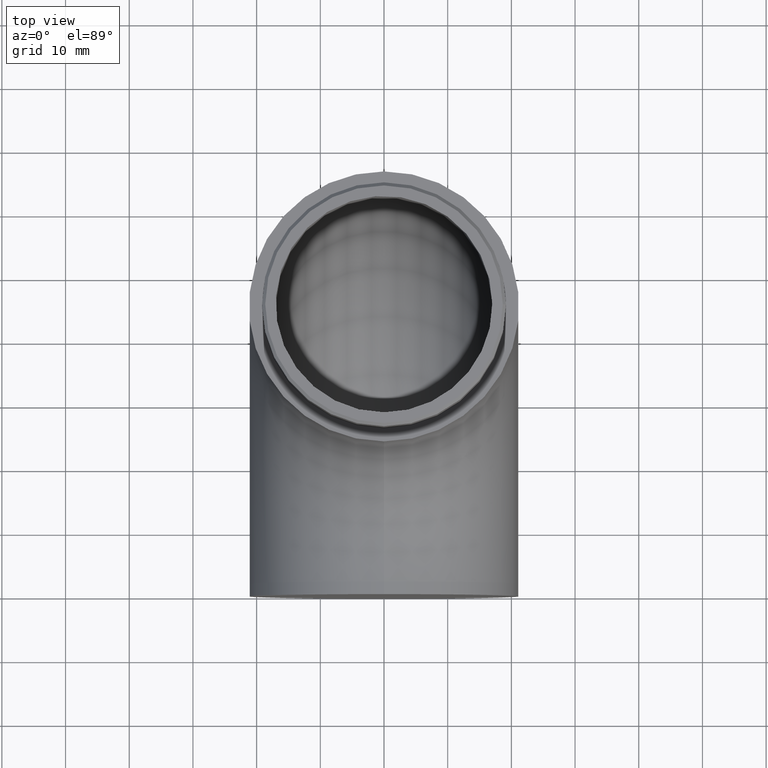
[diagram: clean part render]
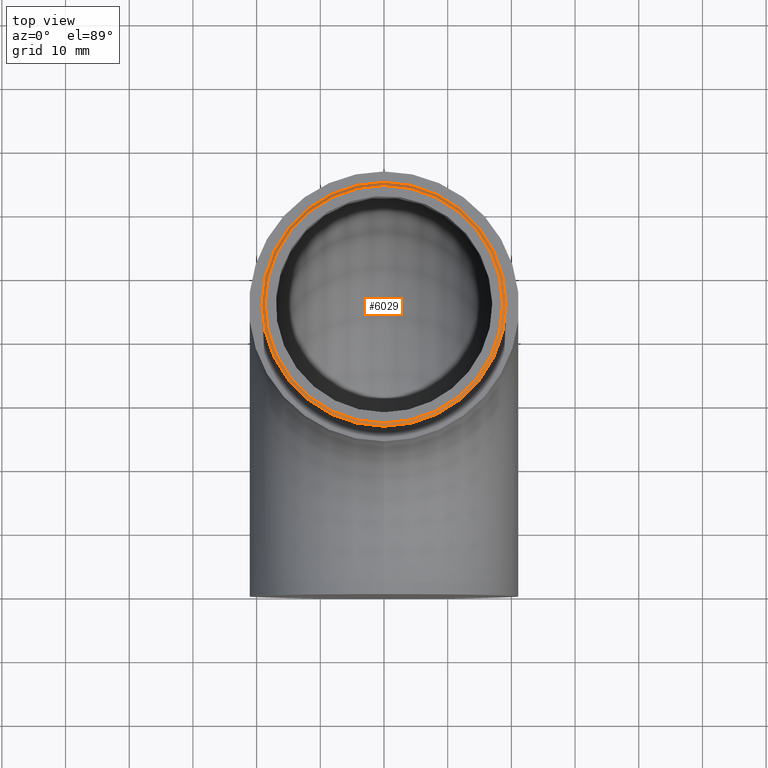
[diagram: same view with one face highlighted and labeled with its STEP entity id]
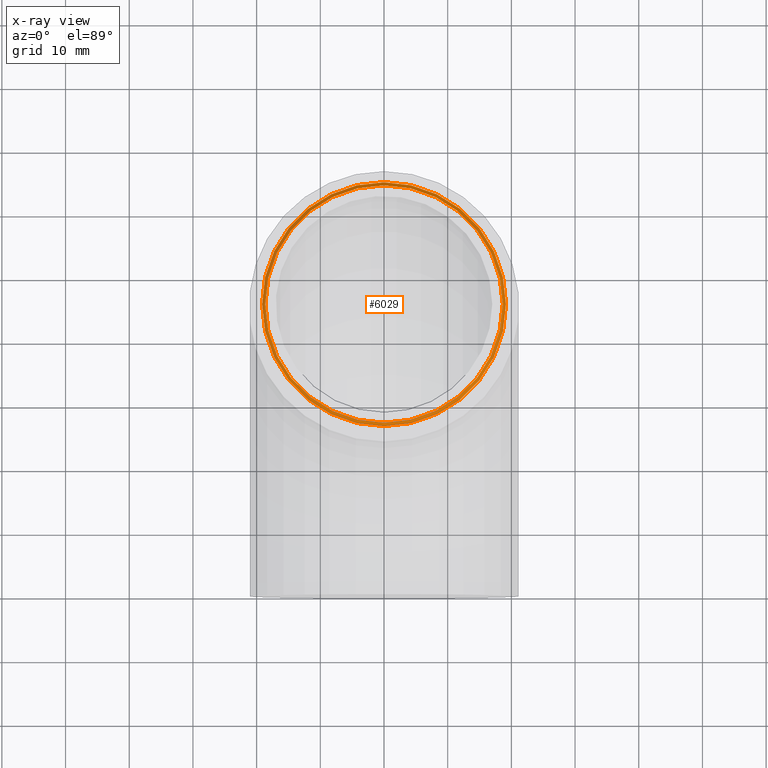
[diagram: x-ray of the same camera — body ghosted, the highlighted face saturated]
A machine part, top view. The second image highlights one B-rep face of the part: STEP entity #6029.
The next image is the same camera in x-ray: the body ghosted, the highlighted face saturated — about 0% of this face is hidden behind the body in this view.
In plain terms, the highlighted conical surface has half-angle 45 deg.
Its self-contained STEP definition (entity closure, byte-faithful):
#281 = DIRECTION ( 'NONE',  ( 1.000000000000000000, 0.0000000000000000000, 0.0000000000000000000 ) ) ;
#320 = DIRECTION ( 'NONE',  ( 0.0000000000000000000, 0.0000000000000000000, -1.000000000000000000 ) ) ;
#386 = CARTESIAN_POINT ( 'NONE',  ( 0.0000000000000000000, 44.80000000000000400, 62.80000000000001100 ) ) ;
#394 = ORIENTED_EDGE ( 'NONE', *, *, #1895, .F. ) ;
#1895 = EDGE_CURVE ( 'NONE', #7355, #7355, #2129, .T. ) ;
#2126 = DIRECTION ( 'NONE',  ( 1.000000000000000000, 0.0000000000000000000, 0.0000000000000000000 ) ) ;
#2129 = CIRCLE ( 'NONE', #12109, 18.65000000000001300 ) ;
#2235 = FACE_BOUND ( 'NONE', #6420, .T. ) ;
#3462 = DIRECTION ( 'NONE',  ( -1.000000000000000000, 0.0000000000000000000, 0.0000000000000000000 ) ) ;
#3684 = AXIS2_PLACEMENT_3D ( 'NONE', #10984, #7365, #3462 ) ;
#3716 = EDGE_LOOP ( 'NONE', ( #8767 ) ) ;
#4338 = EDGE_CURVE ( 'NONE', #11627, #11627, #9373, .T. ) ;
#4475 = FACE_OUTER_BOUND ( 'NONE', #3716, .T. ) ;
#6029 = ADVANCED_FACE ( 'NONE', ( #4475, #2235 ), #10822, .T. ) ;
#6420 = EDGE_LOOP ( 'NONE', ( #394 ) ) ;
#7355 = VERTEX_POINT ( 'NONE', #8021 ) ;
#7365 = DIRECTION ( 'NONE',  ( 0.0000000000000000000, 0.0000000000000000000, -1.000000000000000000 ) ) ;
#7855 = DIRECTION ( 'NONE',  ( 0.0000000000000000000, 0.0000000000000000000, 1.000000000000000000 ) ) ;
#8021 = CARTESIAN_POINT ( 'NONE',  ( 18.65000000000001300, 44.80000000000000400, 62.80000000000001100 ) ) ;
#8323 = CARTESIAN_POINT ( 'NONE',  ( 19.15000000000000200, 44.80000000000000400, 62.30000000000001800 ) ) ;
#8767 = ORIENTED_EDGE ( 'NONE', *, *, #4338, .F. ) ;
#9373 = CIRCLE ( 'NONE', #10328, 19.15000000000000200 ) ;
#10328 = AXIS2_PLACEMENT_3D ( 'NONE', #10425, #320, #281 ) ;
#10425 = CARTESIAN_POINT ( 'NONE',  ( 0.0000000000000000000, 44.80000000000000400, 62.30000000000001800 ) ) ;
#10822 = CONICAL_SURFACE ( 'NONE', #3684, 18.65000000000001300, 0.7853981633974447300 ) ;
#10984 = CARTESIAN_POINT ( 'NONE',  ( 0.0000000000000000000, 44.80000000000000400, 62.80000000000001100 ) ) ;
#11627 = VERTEX_POINT ( 'NONE', #8323 ) ;
#12109 = AXIS2_PLACEMENT_3D ( 'NONE', #386, #7855, #2126 ) ;